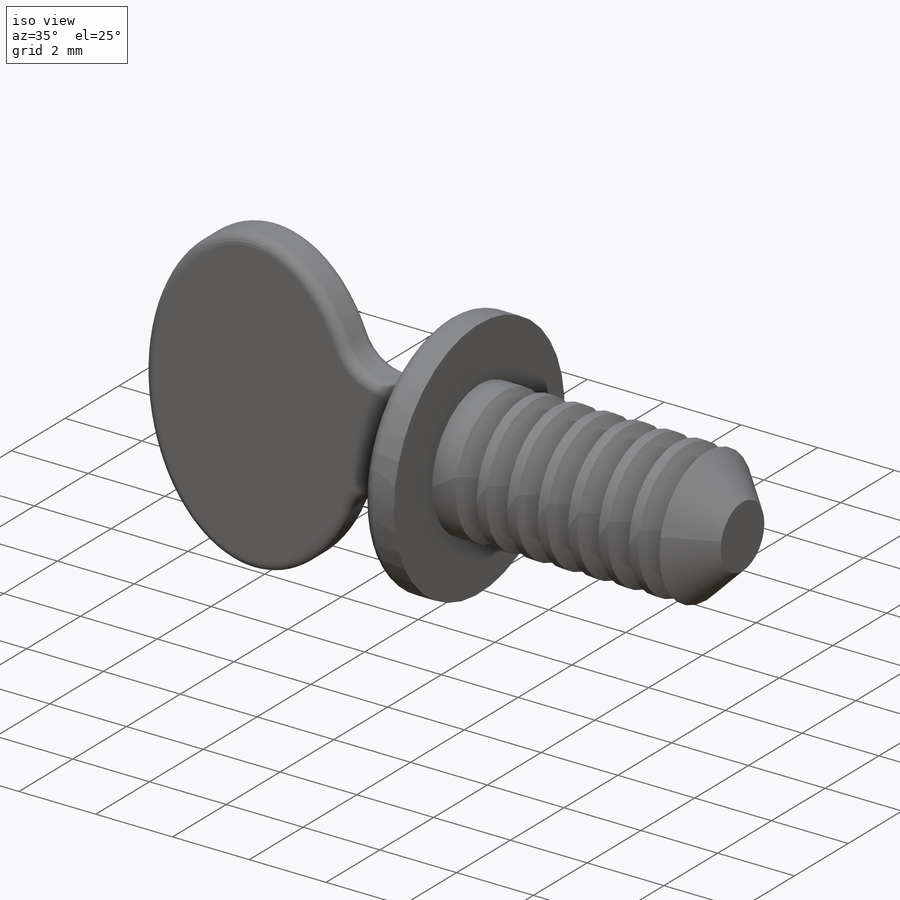
[diagram: iso view]
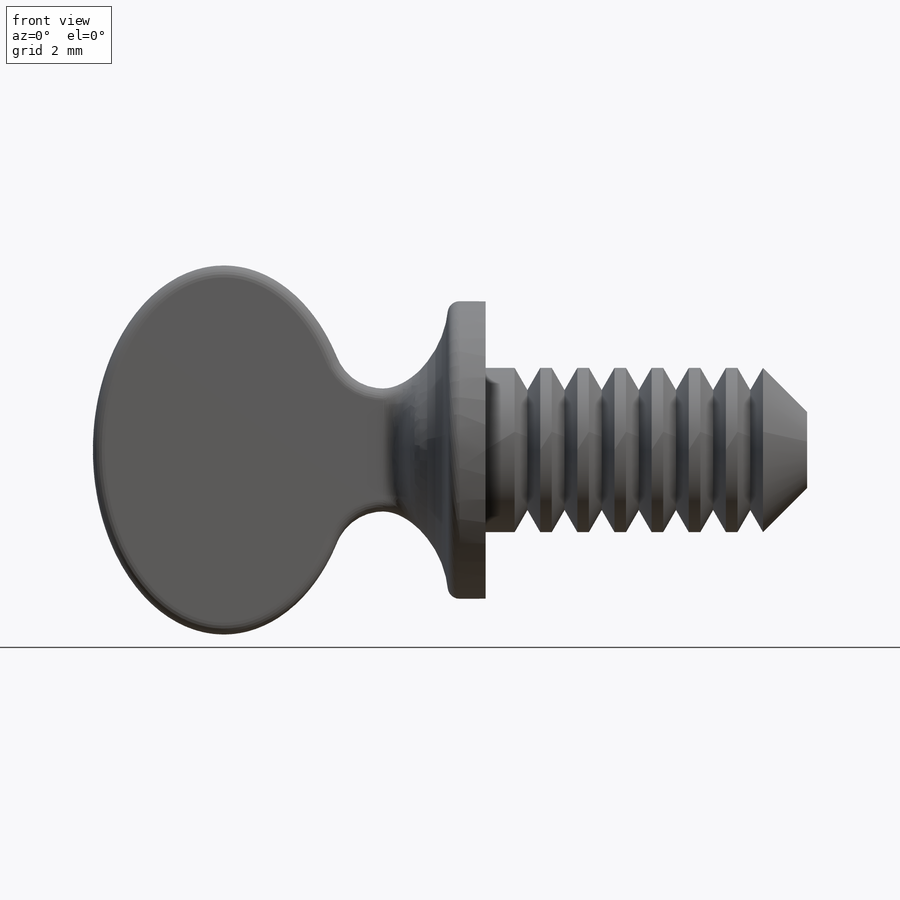
[diagram: front view]
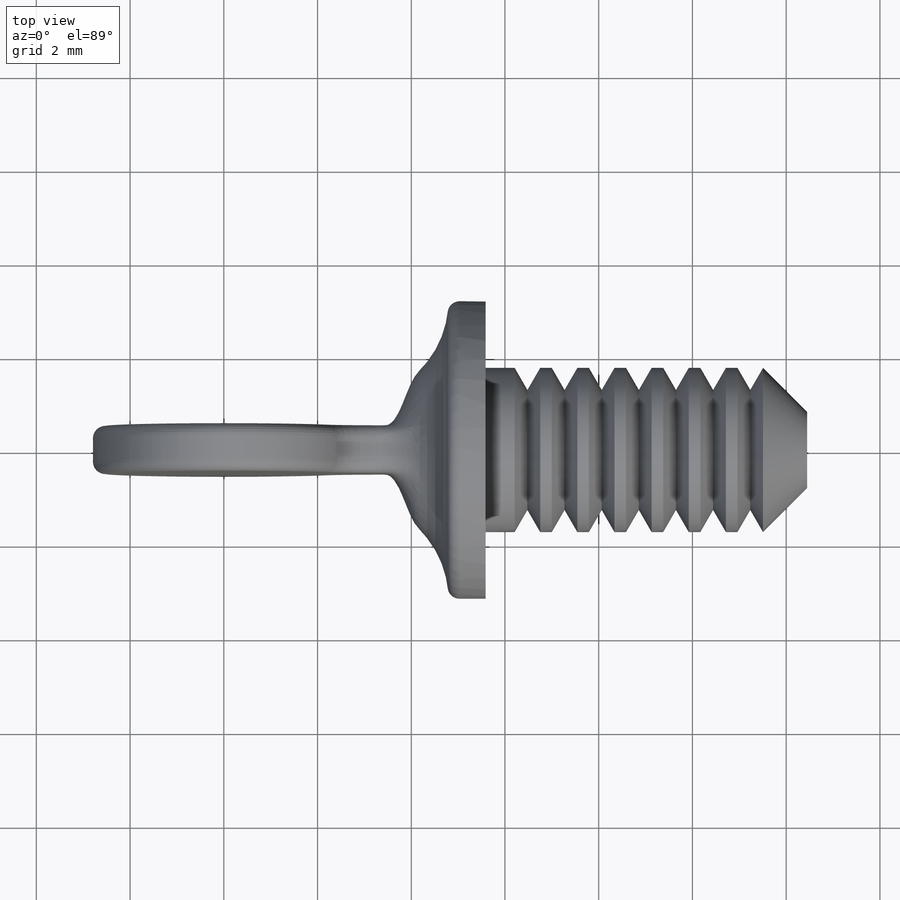
[diagram: top view]
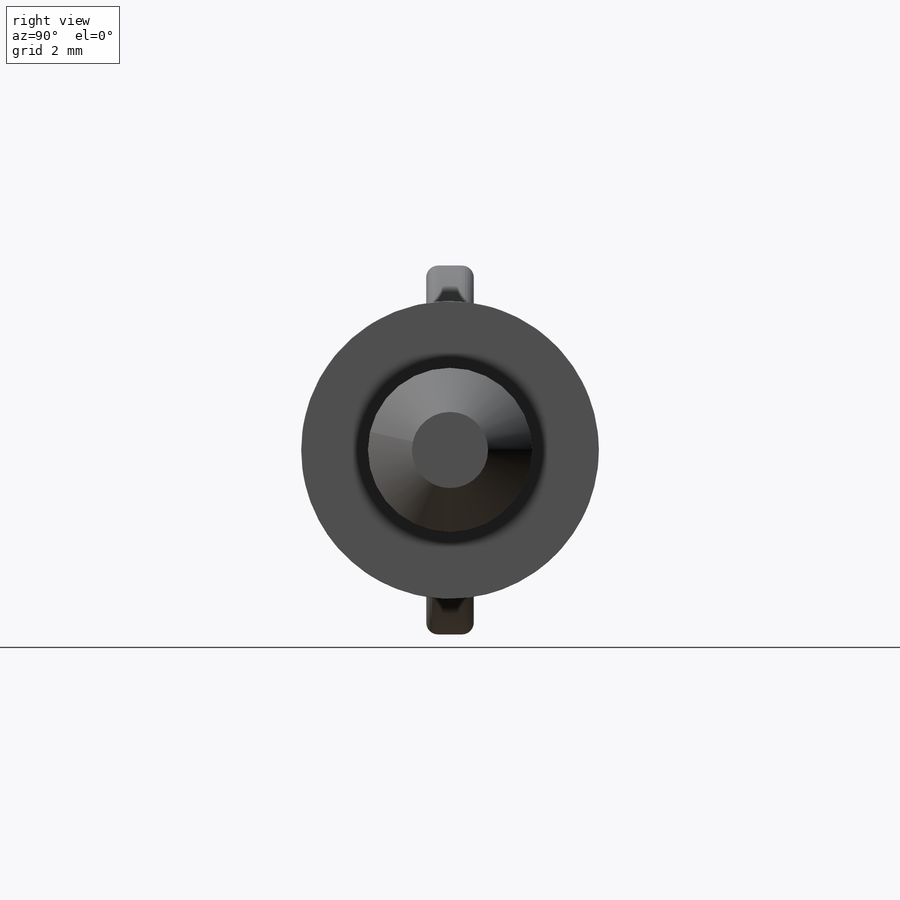
[diagram: right view]
SOLIDWORKS PART (.sldprt)
format: sldprt  version: not decoded by parser v0  size: 560,128 bytes
history: native  units: mm
features: sketch x4, fillet x2, material x1, extrude x1, revolve x1, thread x1, cut_revolve x1, pattern_linear x1 (+11 scaffold rows collapsed)
feature tree (23):
  scaffold x11  (default folders/planes/origin — collapsed)
  material  "Cast Alloy Steel"
  sketch  "layout"  dims[c1.Head Width=7.874mm c1.Shoulder Dia=6.35mm c1.Head Height=8.382mm c1.D4=5.588mm c1.D5=~2.624667mm c1.D6=3.937mm c1.D7=~3.412067mm c1.D8=~0.798286mm c1.D9=~0.950977mm c2.D9=45.0deg c2.Length=6.858mm c2.DIA=3.5052mm c2.Base Screw Dia=3.5052mm]
  sketch  "Sketch3"
  extrude  "Extrude1"  Depth=1.016mm Head Thickness=1.016mm
  fillet  "Fillet1"  Radius=0.254mm
  sketch  "Sketch4"  dims[c1.O=1.6256mm c1.D2=~0.720846mm c2.D2=~47.062317deg c3.D2=~0.720846mm c4.D2=118.0deg c4.D3=~0.465487mm c5.D3=129.0905deg c6.D3=~1.204344mm c7.D3=90.0deg]
  revolve  "Revolve1"  [1 undecoded]
  thread  "Cosmetic Thread1"  Diameter=2.56032mm Minor Dia=2.56032mm  [1 undecoded]
  fillet  "Fillet2"  Radius=0.254mm
  sketch  "Sketch5"  dims[D1=~0.47244mm]
  cut_revolve  "Cut-Revolve10"  Angle=360deg
  pattern_linear  "LPattern10"  Count1=7 Count2=1 Spacing1=0.79248mm Spacing2=50mm Advance=0.79248mm
decode coverage: 9 of 11 modeling features carry decoded parameters
note: ~ marks probable driven/reference dimensions
note: 2 parameter values undecoded
note: suppression state not decoded; provenance and decode notes live in map.json
